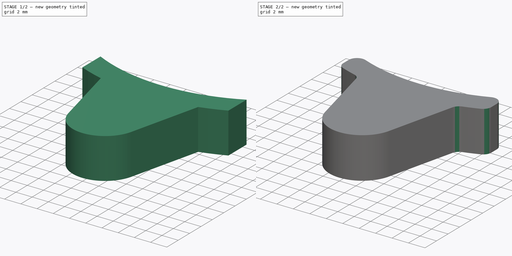
[diagram: build sequence overview — one tinted view per stage of 2, left to right]
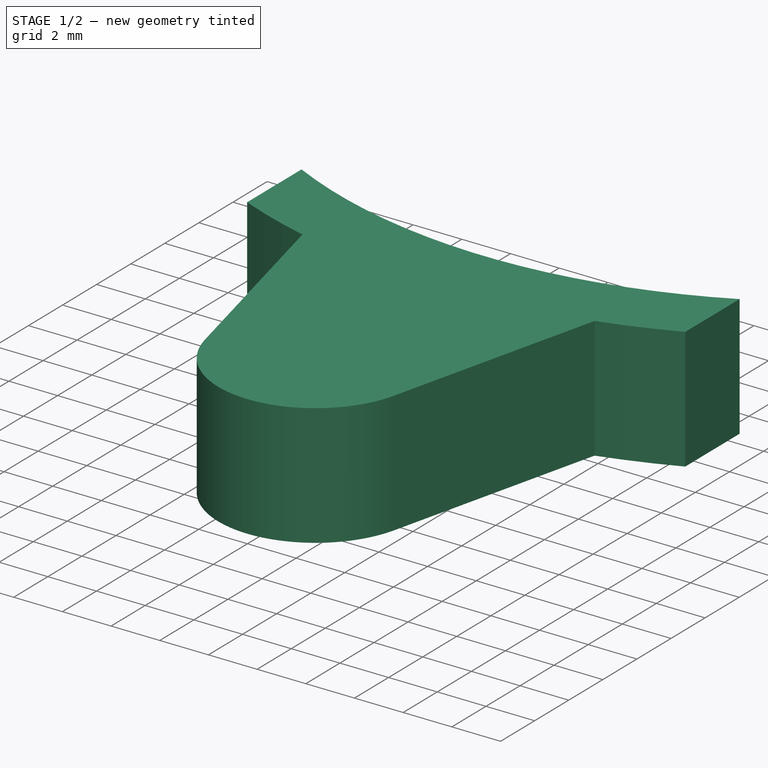
[diagram: stage 1 of 2 — iso view after this stage's code; geometry added in this stage tinted green]
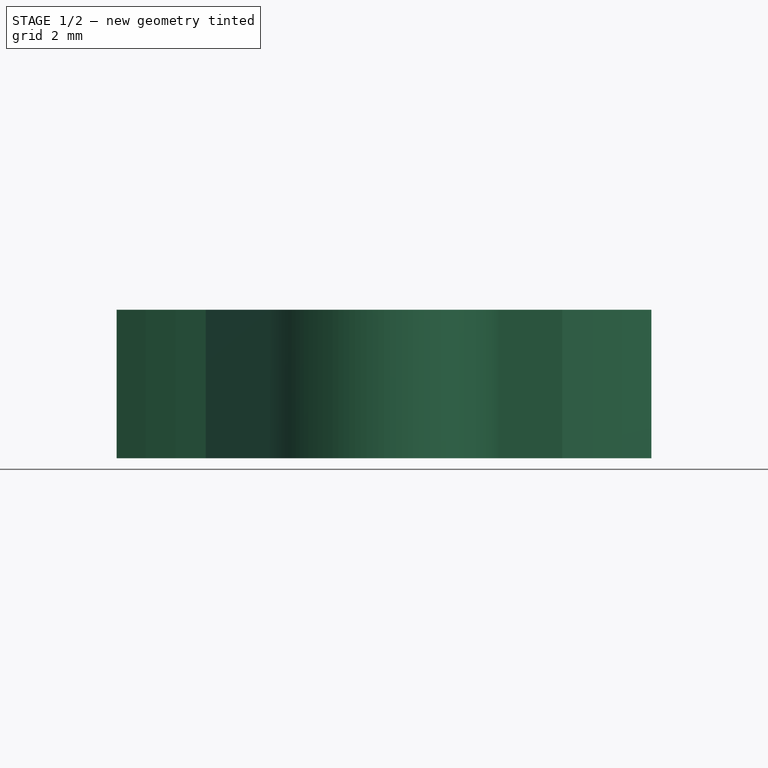
[diagram: stage 1 of 2 — front view after this stage's code; geometry added in this stage tinted green]
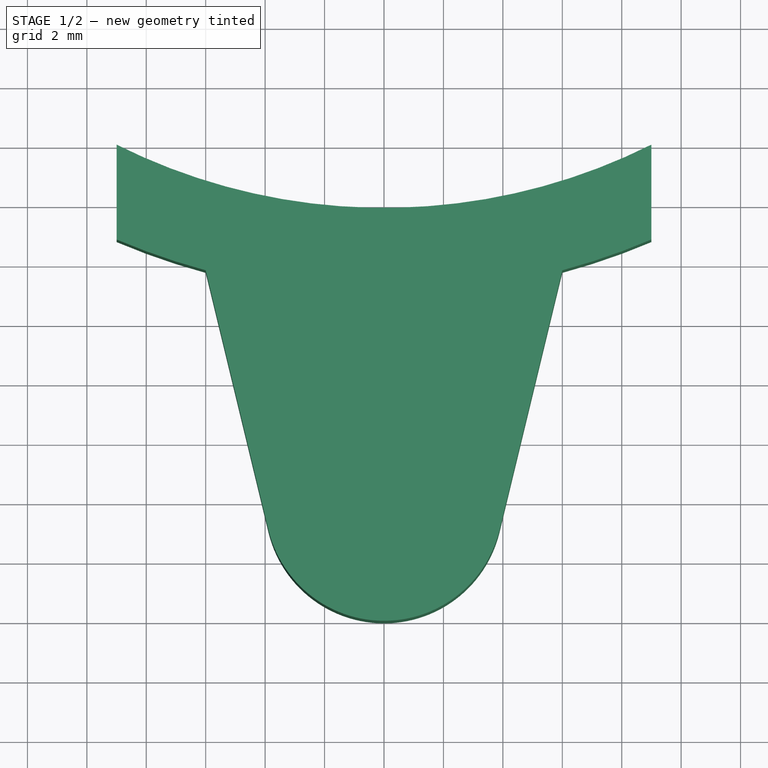
[diagram: stage 1 of 2 — top view after this stage's code; geometry added in this stage tinted green]
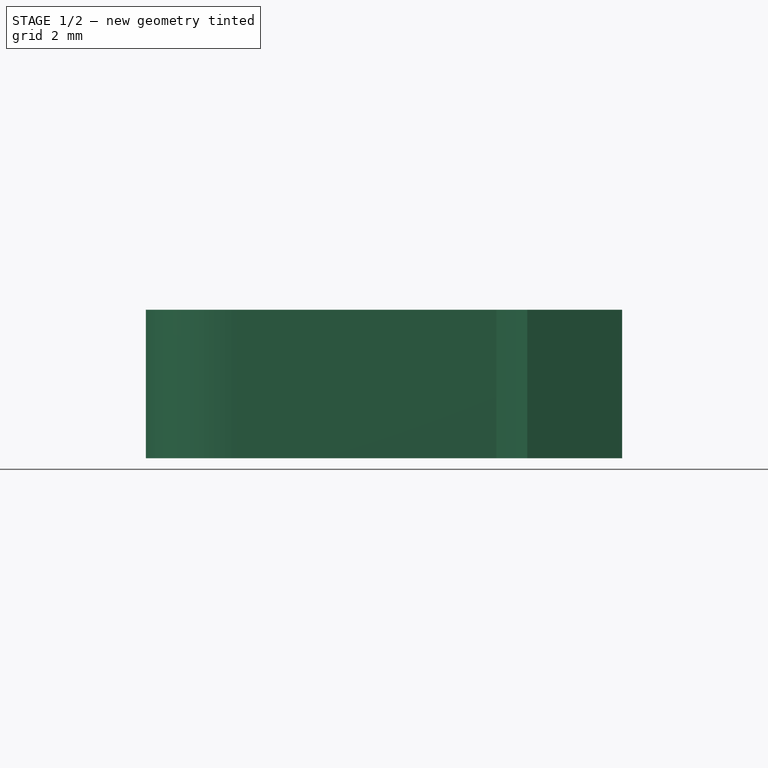
[diagram: stage 1 of 2 — right view after this stage's code; geometry added in this stage tinted green]
FCSTD DOCUMENT  (FreeCAD 0.16RUnknown)
Label: homing_ring
License: All rights reserved
LicenseURL: http://en.wikipedia.org/wiki/All_rights_reserved
objects: Sketcher::SketchObject×1, PartDesign::Pad×1, PartDesign::Fillet×1
note: 4 computed .brp shape members not serialized (recipe doc carries the construction recipe); baked Part::Feature solids carry a one-line shape summary decoded from their .brp

FEATURE [Sketcher::SketchObject] Sketch
  sketch-geometry (8):
    g0: ArcOfCircle CenterX=0 CenterY=0 CenterZ=0 NormalX=0 NormalY=0 NormalZ=1 Radius=20.1 StartAngle=4.24813 EndAngle=5.17665
    g1: ArcOfCircle CenterX=0 CenterY=0 CenterZ=0 NormalX=0 NormalY=0 NormalZ=1 Radius=23 StartAngle=4.97631 EndAngle=5.11444
    g2: LineSegment StartX=-6 StartY=-22.2036 StartZ=0 EndX=-3.88801 EndY=-30.9399 EndZ=0
    g3: LineSegment StartX=6 StartY=-22.2036 StartZ=0 EndX=3.88801 EndY=-30.9399 EndZ=0
    g4: ArcOfCircle CenterX=0 CenterY=0 CenterZ=0 NormalX=0 NormalY=0 NormalZ=1 Radius=23 StartAngle=4.31034 EndAngle=4.44847
    g5: ArcOfCircle CenterX=0 CenterY=-30 CenterZ=0 NormalX=0 NormalY=0 NormalZ=1 Radius=4 StartAngle=3.37878 EndAngle=6.04599
    g6: LineSegment StartX=9 StartY=-21.166 StartZ=0 EndX=9 EndY=-17.9725 EndZ=0
    g7: LineSegment StartX=-9 StartY=-21.166 StartZ=0 EndX=-9 EndY=-17.9725 EndZ=0
  constraints (25):
    c: Coincident(g0,g-1)
    c: Radius(g0) = 20.1
    c: Coincident(g1,g-1)
    c: Radius(g1) = 23
    c: Coincident(g1,g3)
    c: Coincident(g4,g2)
    c: Equal(g3,g2)
    c: Equal(g1,g4)
    c: Coincident(g1,g4)
    c: Coincident(g5,g2)
    c: Coincident(g5,g3)
    c: PointOnObject(g5,g-2)
    c: DistanceY(g5,g-1) = 30
    c: Vertical(g7)
    c: Coincident(g0,g7)
    c: Coincident(g0,g6)
    c: Vertical(g6)
    c: Coincident(g1,g6)
    c: Coincident(g4,g7)
    c: Symmetric(g0,g0,g-2)
    c: DistanceX(g0,g0) = 18
    c: Radius(g5) = 4
    c: Tangent(g5,g3)
    c: Tangent(g5,g2)
    c: DistanceX(g2,g1) = 12
FEATURE [PartDesign::Pad] Pad
  Length = 5
  Length2 = 100
  Sketch = -> Sketch
  Type = 0
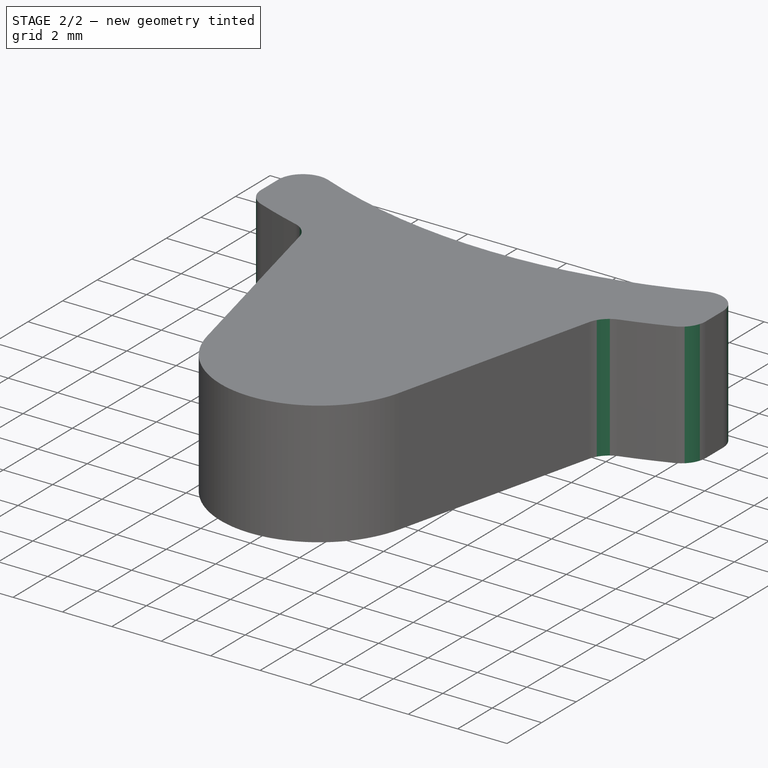
[diagram: stage 2 of 2 — iso view after this stage's code; geometry added in this stage tinted green]
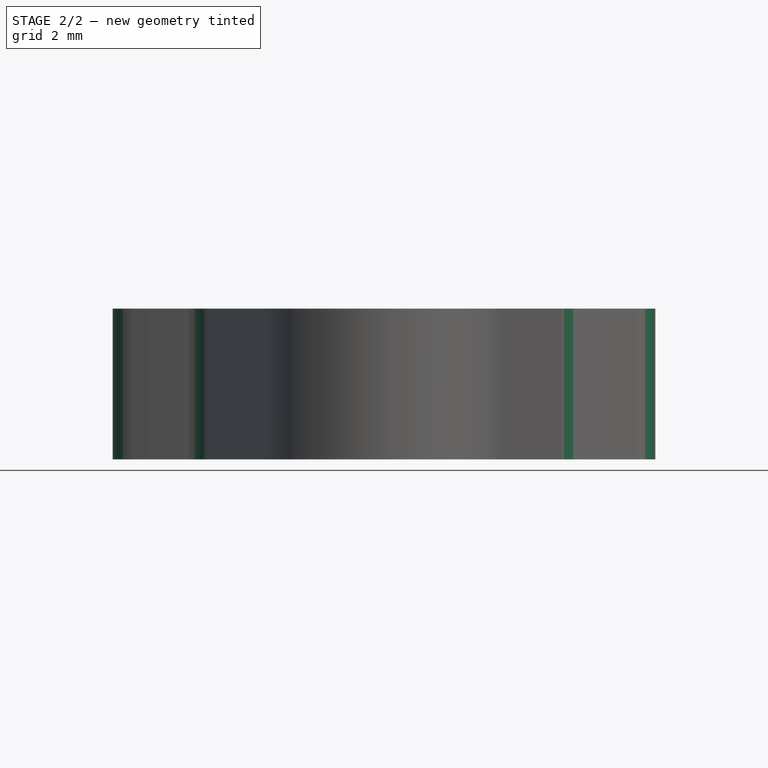
[diagram: stage 2 of 2 — front view after this stage's code; geometry added in this stage tinted green]
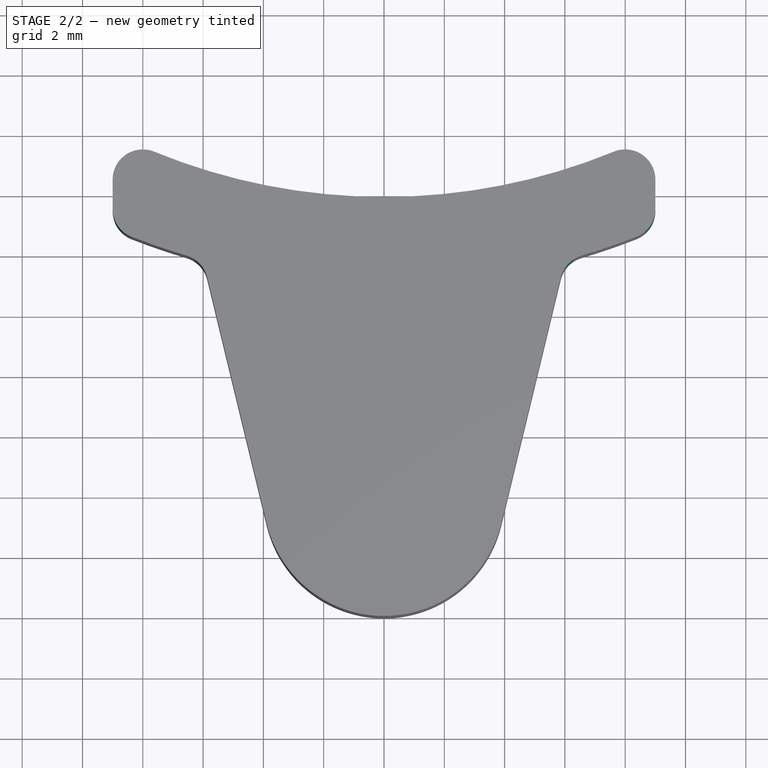
[diagram: stage 2 of 2 — top view after this stage's code; geometry added in this stage tinted green]
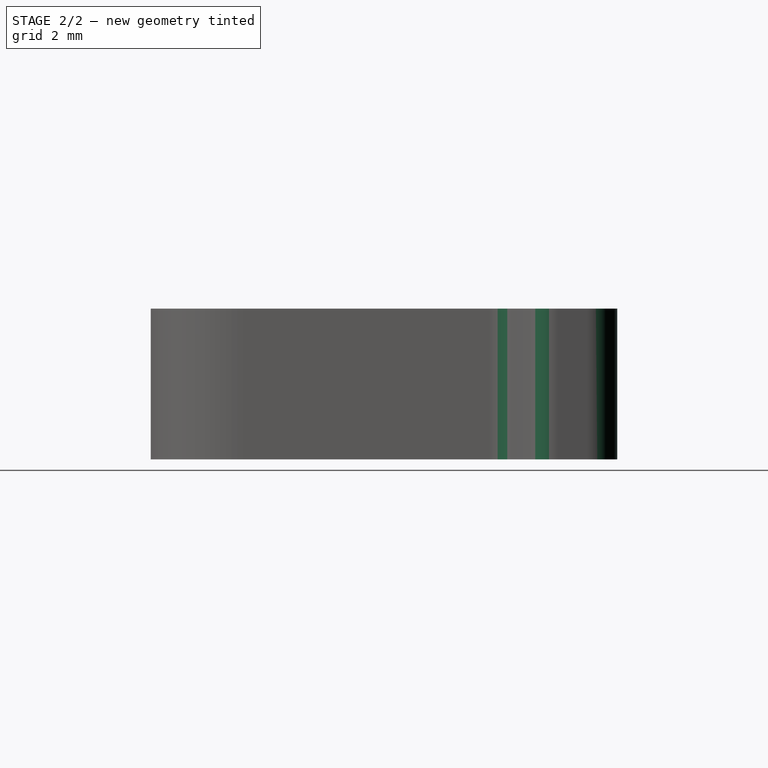
[diagram: stage 2 of 2 — right view after this stage's code; geometry added in this stage tinted green]
FEATURE [PartDesign::Fillet] Fillet
  Base = -> Pad [Edge5,Edge8,Edge1,Edge20,Edge2,Edge11]
  Radius = 1
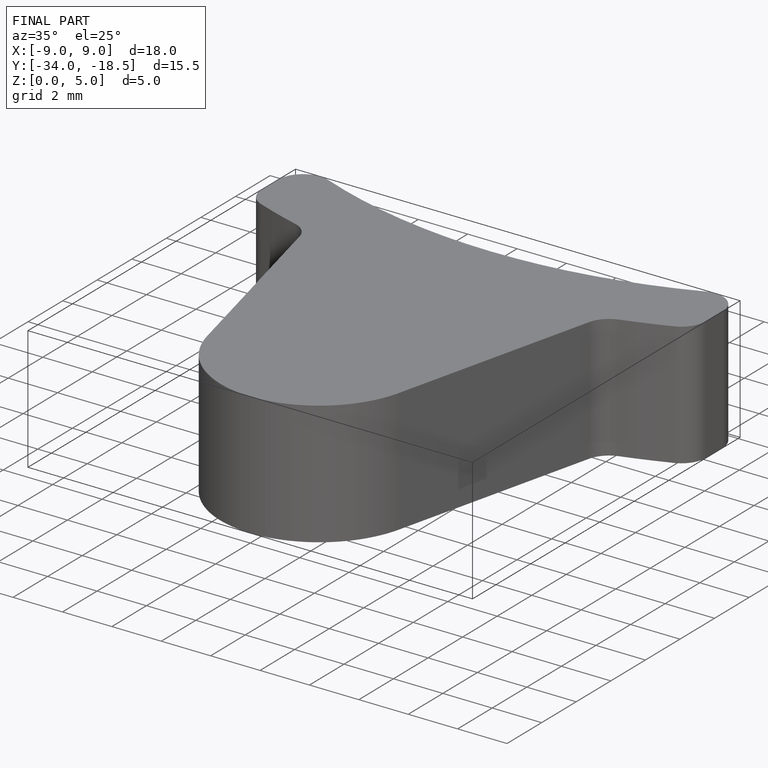
[diagram: finished part — iso view with bounding-box wireframe]
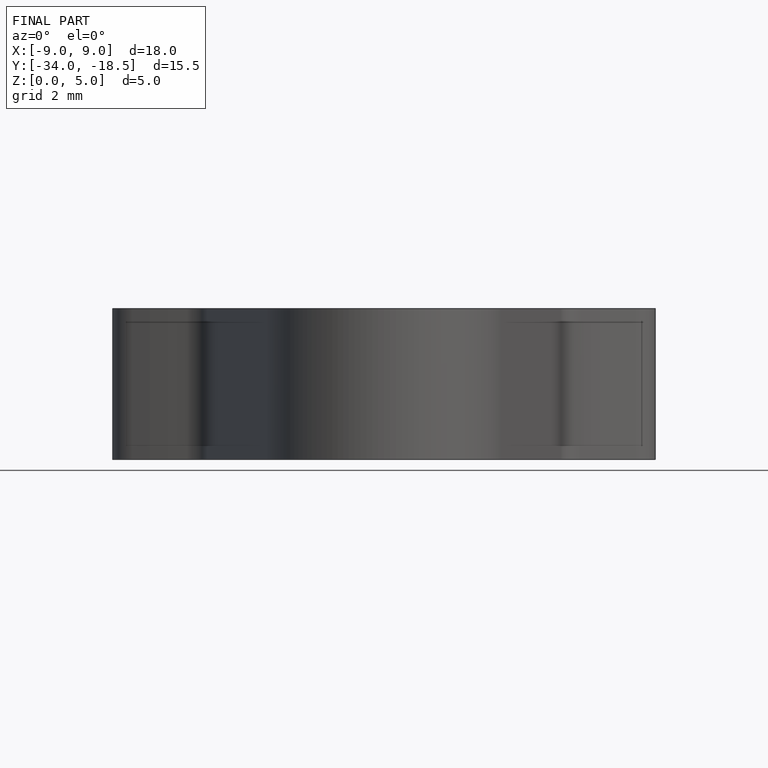
[diagram: finished part — front view with bounding-box wireframe]
